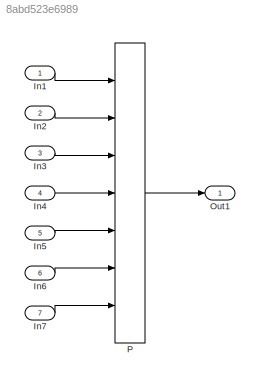
MODEL slx_8abd523e6989
KIND model
CONFIG AbsTol = auto
CONFIG EnableMultiTasking = off
CONFIG FixedStep = auto
CONFIG MaxStep = auto
CONFIG MinStep = auto
CONFIG RelTol = 1e-3
CONFIG SampleTimeConstraint = Unconstrained
CONFIG Solver = FixedStepDiscrete
CONFIG SolverName = FixedStepDiscrete
CONFIG StartTime = 0.0
CONFIG StopTime = 10.0
BLOCK [Inport] In1
  IconDisplay = Port number
  OutDataTypeStr = uint8
  OutMax = 127
  OutMin = 0
  PortDimensions = 1
BLOCK [Inport] In2
  IconDisplay = Port number
  OutDataTypeStr = uint8
  OutMax = 127
  OutMin = 0
  Port = 2
BLOCK [Inport] In3
  IconDisplay = Port number
  OutDataTypeStr = uint8
  OutMax = 127
  OutMin = 0
  Port = 3
BLOCK [Inport] In4
  IconDisplay = Port number
  OutDataTypeStr = uint8
  OutMax = 127
  OutMin = 0
  Port = 4
BLOCK [Inport] In5
  IconDisplay = Port number
  OutDataTypeStr = uint8
  OutMax = 127
  OutMin = 0
  Port = 5
BLOCK [Inport] In6
  IconDisplay = Port number
  OutDataTypeStr = uint8
  OutMax = 127
  OutMin = 0
  Port = 6
BLOCK [Inport] In7
  IconDisplay = Port number
  OutDataTypeStr = uint8
  OutMax = 127
  OutMin = 0
  Port = 7
BLOCK [Outport] Out1
  IconDisplay = Port number
BLOCK [Lookup_n-D] P
  BreakpointsForDimension1 = [20.6449487081805;28.9590977599481]
  BreakpointsForDimension1DataTypeStr = uint16
  BreakpointsForDimension2 = [2.79782437003312;21.1955109695439;29.5424297546603;45.7497711838768;64.6612064780801]
  BreakpointsForDimension2DataTypeStr = uint16
  BreakpointsForDimension3 = [12.6489991545786;17.3744968876799;45.0944426845204]
  BreakpointsForDimension3DataTypeStr = uint16
  BreakpointsForDimension4 = [5.41023020843354;49.7712491403735]
  BreakpointsForDimension4DataTypeStr = uint16
  BreakpointsForDimension5 = [90.1555615293621;93.1167458708717;98.1130419104113]
  BreakpointsForDimension5DataTypeStr = uint16
  BreakpointsForDimension6 = [2.49538002813475;23.506191693022;65.5266092442601;82.3934750598976]
  BreakpointsForDimension6DataTypeStr = uint16
  BreakpointsForDimension7 = [1.8469883161188;35.121342952892;79.1136962846033]
  BreakpointsForDimension7DataTypeStr = uint16
  ExtrapMethod = Clip
  InternalRulePriority = Speed
  InterpMethod = Flat
  NumberOfTableDimensions = 7
  OutDataTypeStr = uint16
  Ports = [7, 1]
  SaturateOnIntegerOverflow = on
  Table = reshape(repmat([4 5 6 7 8;16 19 20 21 22;10 18 23 24 25],18,8),[2,5,3,2,3,4,3])
  TableDataTypeStr = single
LINE In1:1 -> P:1
LINE In2:1 -> P:2
LINE In3:1 -> P:3
LINE In4:1 -> P:4
LINE In5:1 -> P:5
LINE In6:1 -> P:6
LINE In7:1 -> P:7
LINE P:1 -> Out1:1
